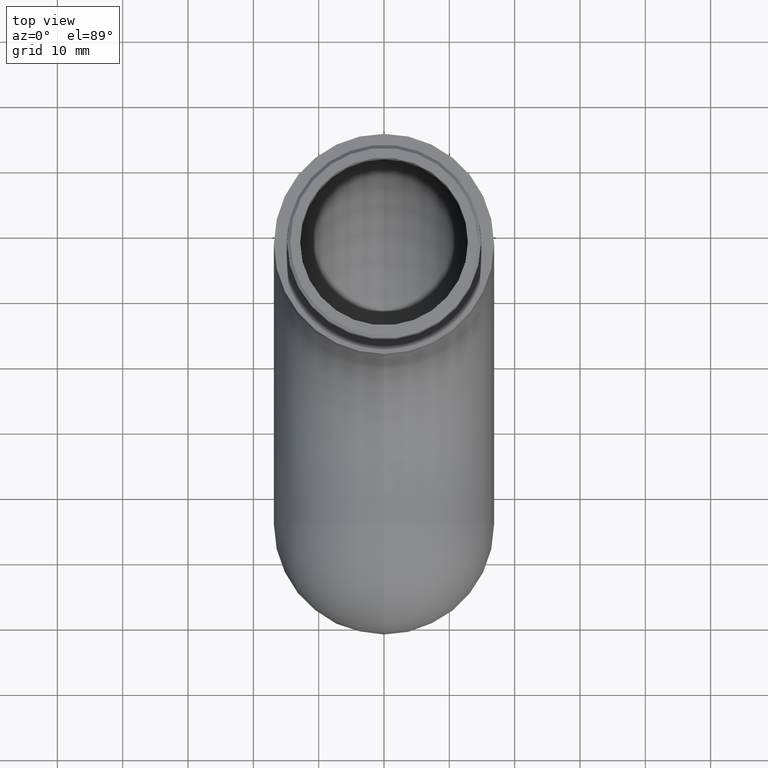
[diagram: clean part render]
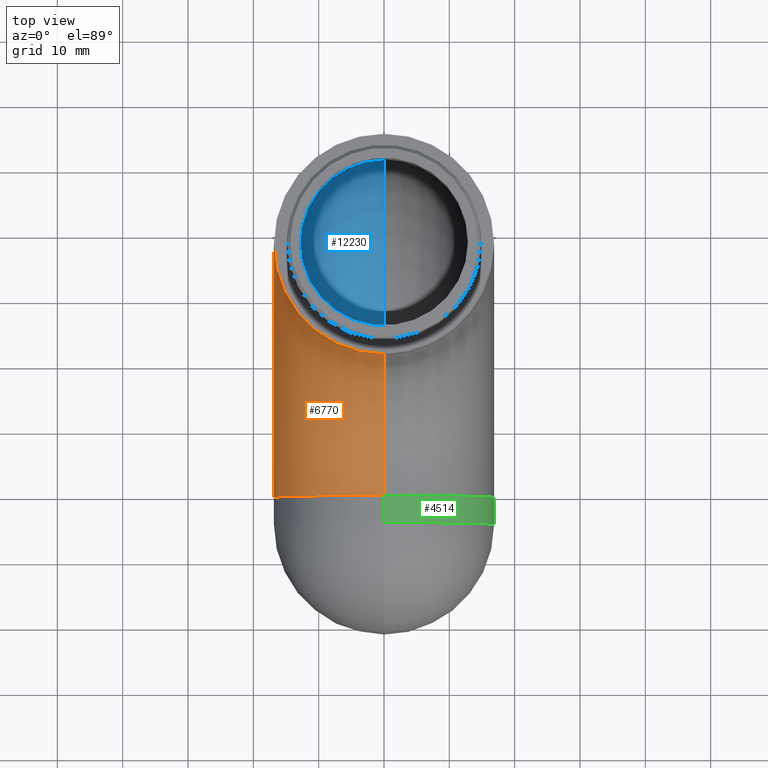
[diagram: same view with three faces highlighted in distinct colors, each labeled with its STEP entity id]
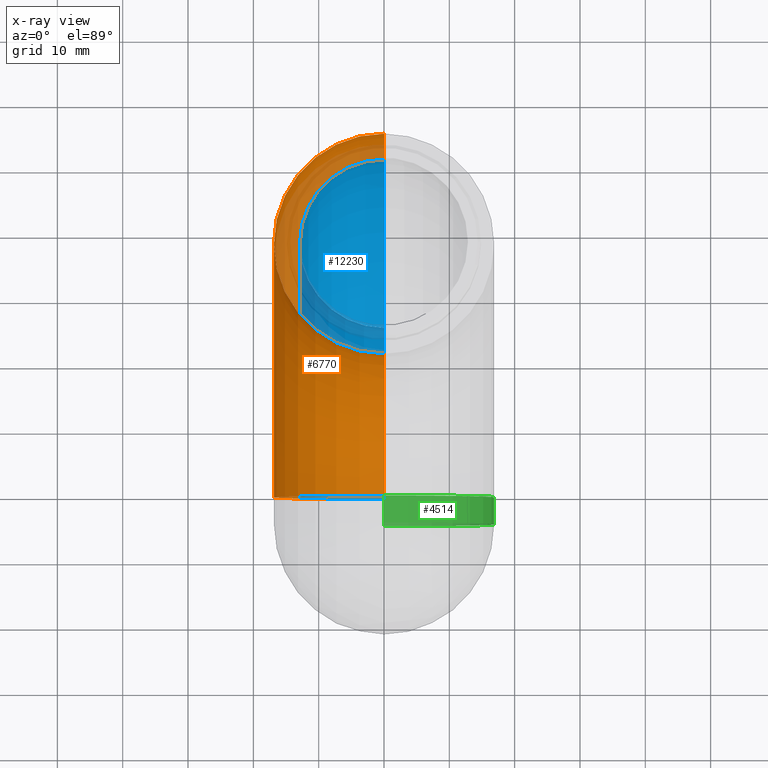
[diagram: x-ray of the same camera — body ghosted, the three highlighted faces saturated]
A machine part, top view with three faces highlighted in distinct colors.
The next image is the same camera in x-ray (body ghosted, the three faces saturated) — at least one of them is partly hidden behind the body in this view.
Their STEP definitions:

[orange] entity #6770 — the highlighted toroidal blend (fillet) surface has major radius 38.15 mm and minor (blend) radius 16.85 mm.
#585 = CIRCLE ( 'NONE', #5127, 21.29999999999999716 ) ;
#683 = ORIENTED_EDGE ( 'NONE', *, *, #2597, .F. ) ;
#1047 = VERTEX_POINT ( 'NONE', #5498 ) ;
#1107 = EDGE_LOOP ( 'NONE', ( #9685, #10260, #5250, #683 ) ) ;
#1224 = CARTESIAN_POINT ( 'NONE',  ( 0.000000000000000000, 38.14999999999999858, 6.134987908516368297E-15 ) ) ;
#1532 = VERTEX_POINT ( 'NONE', #9719 ) ;
#2095 = AXIS2_PLACEMENT_3D ( 'NONE', #10661, #4114, #5914 ) ;
#2125 = DIRECTION ( 'NONE',  ( -1.000000000000000000, -0.000000000000000000, -0.000000000000000000 ) ) ;
#2146 = EDGE_CURVE ( 'NONE', #1047, #7278, #4490, .T. ) ;
#2365 = DIRECTION ( 'NONE',  ( -1.000000000000000000, -0.000000000000000000, -0.000000000000000000 ) ) ;
#2597 = EDGE_CURVE ( 'NONE', #1532, #1047, #585, .T. ) ;
#3449 = DIRECTION ( 'NONE',  ( 0.000000000000000000, 0.000000000000000000, 1.000000000000000000 ) ) ;
#3623 = DIRECTION ( 'NONE',  ( 0.000000000000000000, 0.000000000000000000, 1.000000000000000000 ) ) ;
#4114 = DIRECTION ( 'NONE',  ( -0.000000000000000000, -1.000000000000000000, -0.000000000000000000 ) ) ;
#4211 = AXIS2_PLACEMENT_3D ( 'NONE', #7399, #9325, #3623 ) ;
#4490 = CIRCLE ( 'NONE', #2095, 16.85000000000001918 ) ;
#5127 = AXIS2_PLACEMENT_3D ( 'NONE', #7822, #2125, #6897 ) ;
#5147 = EDGE_CURVE ( 'NONE', #10488, #1532, #7057, .T. ) ;
#5250 = ORIENTED_EDGE ( 'NONE', *, *, #2146, .F. ) ;
#5498 = CARTESIAN_POINT ( 'NONE',  ( 2.063529856563292216E-15, 3.469446951953614189E-15, -21.29999999999995808 ) ) ;
#5796 = DIRECTION ( 'NONE',  ( 0.000000000000000000, -1.000000000000000000, -1.608122649676636601E-16 ) ) ;
#5914 = DIRECTION ( 'NONE',  ( 0.000000000000000000, 0.000000000000000000, -1.000000000000000000 ) ) ;
#5919 = DIRECTION ( 'NONE',  ( 0.000000000000000000, -1.608122649676636601E-16, 1.000000000000000000 ) ) ;
#6770 = ADVANCED_FACE ( 'NONE', ( #7934 ), #8245, .T. ) ;
#6897 = DIRECTION ( 'NONE',  ( 0.000000000000000000, 0.000000000000000000, 1.000000000000000000 ) ) ;
#7057 = CIRCLE ( 'NONE', #11835, 16.85000000000000142 ) ;
#7278 = VERTEX_POINT ( 'NONE', #8851 ) ;
#7399 = CARTESIAN_POINT ( 'NONE',  ( 0.000000000000000000, 0.000000000000000000, 0.000000000000000000 ) ) ;
#7479 = CARTESIAN_POINT ( 'NONE',  ( 0.000000000000000000, 54.99999999999999289, 8.844674573221500637E-15 ) ) ;
#7486 = EDGE_CURVE ( 'NONE', #10488, #7278, #8387, .T. ) ;
#7822 = CARTESIAN_POINT ( 'NONE',  ( 2.063529856563290244E-15, 0.000000000000000000, 0.000000000000000000 ) ) ;
#7934 = FACE_OUTER_BOUND ( 'NONE', #1107, .T. ) ;
#8245 = TOROIDAL_SURFACE ( 'NONE', #10959, 38.14999999999999858, 16.85000000000000142 ) ;
#8387 = CIRCLE ( 'NONE', #4211, 54.99999999999999289 ) ;
#8851 = CARTESIAN_POINT ( 'NONE',  ( 0.000000000000000000, 3.469446951953614189E-15, -54.99999999999999289 ) ) ;
#9325 = DIRECTION ( 'NONE',  ( -1.000000000000000000, -0.000000000000000000, -0.000000000000000000 ) ) ;
#9685 = ORIENTED_EDGE ( 'NONE', *, *, #5147, .F. ) ;
#9719 = CARTESIAN_POINT ( 'NONE',  ( 0.000000000000000000, 21.29999999999999716, 3.425301243811235562E-15 ) ) ;
#10260 = ORIENTED_EDGE ( 'NONE', *, *, #7486, .T. ) ;
#10488 = VERTEX_POINT ( 'NONE', #7479 ) ;
#10661 = CARTESIAN_POINT ( 'NONE',  ( 0.000000000000000000, 3.469446951953614189E-15, -38.14999999999997726 ) ) ;
#10941 = CARTESIAN_POINT ( 'NONE',  ( 0.000000000000000000, 0.000000000000000000, 0.000000000000000000 ) ) ;
#10959 = AXIS2_PLACEMENT_3D ( 'NONE', #10941, #2365, #3449 ) ;
#11835 = AXIS2_PLACEMENT_3D ( 'NONE', #1224, #5919, #5796 ) ;

[blue] entity #12230 — the highlighted toroidal blend (fillet) surface has major radius 38.15 mm and minor (blend) radius 12.85 mm.
#69 = CARTESIAN_POINT ( 'NONE',  ( 1.573671136904348863E-15, 25.29999999999999716, 4.068550303681890893E-15 ) ) ;
#339 = ORIENTED_EDGE ( 'NONE', *, *, #9287, .T. ) ;
#609 = DIRECTION ( 'NONE',  ( 0.000000000000000000, -1.000000000000000000, -1.608122649676636354E-16 ) ) ;
#1157 = AXIS2_PLACEMENT_3D ( 'NONE', #6712, #9601, #8507 ) ;
#1827 = VERTEX_POINT ( 'NONE', #5563 ) ;
#2325 = CARTESIAN_POINT ( 'NONE',  ( -12.84999999999999964, 38.14999999999999858, 6.134987908516368297E-15 ) ) ;
#2671 = AXIS2_PLACEMENT_3D ( 'NONE', #11657, #5935, #5038 ) ;
#3022 = FACE_OUTER_BOUND ( 'NONE', #9919, .T. ) ;
#3172 = CARTESIAN_POINT ( 'NONE',  ( 0.000000000000000000, 51.00000000000000000, 8.201425513350845701E-15 ) ) ;
#3278 = CARTESIAN_POINT ( 'NONE',  ( 0.000000000000000000, 38.14999999999999858, 6.134987908516368297E-15 ) ) ;
#3497 = VERTEX_POINT ( 'NONE', #10670 ) ;
#3690 = ORIENTED_EDGE ( 'NONE', *, *, #5895, .T. ) ;
#3785 = AXIS2_PLACEMENT_3D ( 'NONE', #11727, #6799, #4043 ) ;
#3788 = CIRCLE ( 'NONE', #3785, 12.84999999999999964 ) ;
#3856 = CARTESIAN_POINT ( 'NONE',  ( 0.000000000000000000, 0.000000000000000000, 0.000000000000000000 ) ) ;
#3958 = VERTEX_POINT ( 'NONE', #69 ) ;
#4043 = DIRECTION ( 'NONE',  ( 0.000000000000000000, 0.000000000000000000, 1.000000000000000000 ) ) ;
#4096 = TOROIDAL_SURFACE ( 'NONE', #9296, 38.14999999999999858, 12.84999999999999964 ) ;
#4121 = CARTESIAN_POINT ( 'NONE',  ( 0.000000000000000000, 38.14999999999999858, 6.134987908516368297E-15 ) ) ;
#4218 = CIRCLE ( 'NONE', #4384, 12.84999999999999964 ) ;
#4262 = DIRECTION ( 'NONE',  ( 0.000000000000000000, -1.608122649676636601E-16, 1.000000000000000000 ) ) ;
#4384 = AXIS2_PLACEMENT_3D ( 'NONE', #3278, #4262, #609 ) ;
#4837 = ORIENTED_EDGE ( 'NONE', *, *, #11904, .F. ) ;
#4858 = DIRECTION ( 'NONE',  ( -1.000000000000000000, -0.000000000000000000, -0.000000000000000000 ) ) ;
#5038 = DIRECTION ( 'NONE',  ( 0.000000000000000000, 0.000000000000000000, 1.000000000000000000 ) ) ;
#5274 = EDGE_CURVE ( 'NONE', #6604, #3958, #9897, .T. ) ;
#5563 = CARTESIAN_POINT ( 'NONE',  ( 1.573671136904348468E-15, 0.000000000000000000, -25.29999999999999716 ) ) ;
#5895 = EDGE_CURVE ( 'NONE', #3958, #1827, #6452, .T. ) ;
#5935 = DIRECTION ( 'NONE',  ( -1.000000000000000000, -0.000000000000000000, -0.000000000000000000 ) ) ;
#6005 = DIRECTION ( 'NONE',  ( 0.000000000000000000, -1.000000000000000000, -1.608122649676636354E-16 ) ) ;
#6017 = ORIENTED_EDGE ( 'NONE', *, *, #8766, .F. ) ;
#6452 = CIRCLE ( 'NONE', #2671, 25.29999999999999716 ) ;
#6604 = VERTEX_POINT ( 'NONE', #2325 ) ;
#6712 = CARTESIAN_POINT ( 'NONE',  ( 0.000000000000000000, 0.000000000000000000, 0.000000000000000000 ) ) ;
#6799 = DIRECTION ( 'NONE',  ( 0.000000000000000000, 1.000000000000000000, 0.000000000000000000 ) ) ;
#6861 = CIRCLE ( 'NONE', #1157, 51.00000000000000000 ) ;
#7682 = VERTEX_POINT ( 'NONE', #3172 ) ;
#7706 = DIRECTION ( 'NONE',  ( 0.000000000000000000, 0.000000000000000000, 1.000000000000000000 ) ) ;
#7951 = ORIENTED_EDGE ( 'NONE', *, *, #5274, .T. ) ;
#8507 = DIRECTION ( 'NONE',  ( 0.000000000000000000, 0.000000000000000000, 1.000000000000000000 ) ) ;
#8766 = EDGE_CURVE ( 'NONE', #7682, #3497, #6861, .T. ) ;
#8883 = DIRECTION ( 'NONE',  ( 0.000000000000000000, -1.608122649676636601E-16, 1.000000000000000000 ) ) ;
#9287 = EDGE_CURVE ( 'NONE', #7682, #6604, #4218, .T. ) ;
#9296 = AXIS2_PLACEMENT_3D ( 'NONE', #3856, #4858, #7706 ) ;
#9513 = AXIS2_PLACEMENT_3D ( 'NONE', #4121, #8883, #6005 ) ;
#9601 = DIRECTION ( 'NONE',  ( -1.000000000000000000, -0.000000000000000000, -0.000000000000000000 ) ) ;
#9897 = CIRCLE ( 'NONE', #9513, 12.84999999999999964 ) ;
#9919 = EDGE_LOOP ( 'NONE', ( #6017, #339, #7951, #3690, #4837 ) ) ;
#10670 = CARTESIAN_POINT ( 'NONE',  ( 0.000000000000000000, 0.000000000000000000, -51.00000000000000000 ) ) ;
#11657 = CARTESIAN_POINT ( 'NONE',  ( 1.573671136904348863E-15, 0.000000000000000000, 0.000000000000000000 ) ) ;
#11727 = CARTESIAN_POINT ( 'NONE',  ( 0.000000000000000000, 0.000000000000000000, -38.14999999999999858 ) ) ;
#11904 = EDGE_CURVE ( 'NONE', #3497, #1827, #3788, .T. ) ;
#12230 = ADVANCED_FACE ( 'NONE', ( #3022 ), #4096, .F. ) ;

[green] entity #4514 — the highlighted cylindrical surface (partial cylindrical patch) has radius 16.85 mm, axis along (-0, -1, -0).
#100 = CARTESIAN_POINT ( 'NONE',  ( 2.063529856563291822E-15, -20.99999999999999645, -21.29999999999996163 ) ) ;
#792 = CARTESIAN_POINT ( 'NONE',  ( 0.000000000000000000, -20.99999999999999645, -54.99999999999999289 ) ) ;
#807 = EDGE_CURVE ( 'NONE', #7278, #12162, #2239, .T. ) ;
#1047 = VERTEX_POINT ( 'NONE', #5498 ) ;
#1230 = AXIS2_PLACEMENT_3D ( 'NONE', #1914, #7490, #8445 ) ;
#1914 = CARTESIAN_POINT ( 'NONE',  ( 0.000000000000000000, 3.469446951953614189E-15, -38.14999999999997726 ) ) ;
#2239 = LINE ( 'NONE', #792, #2557 ) ;
#2557 = VECTOR ( 'NONE', #6444, 1000.000000000000000 ) ;
#2730 = EDGE_CURVE ( 'NONE', #1047, #8908, #10701, .T. ) ;
#3345 = EDGE_LOOP ( 'NONE', ( #6605, #9827, #5778, #4306 ) ) ;
#3715 = VECTOR ( 'NONE', #6921, 1000.000000000000000 ) ;
#3773 = CIRCLE ( 'NONE', #8629, 16.85000000000001208 ) ;
#4306 = ORIENTED_EDGE ( 'NONE', *, *, #807, .F. ) ;
#4514 = ADVANCED_FACE ( 'NONE', ( #5990 ), #6581, .T. ) ;
#4774 = CARTESIAN_POINT ( 'NONE',  ( 0.000000000000000000, -4.149999999999997691, -38.14999999999997726 ) ) ;
#4802 = EDGE_CURVE ( 'NONE', #12162, #8908, #3773, .T. ) ;
#5498 = CARTESIAN_POINT ( 'NONE',  ( 2.063529856563292216E-15, 3.469446951953614189E-15, -21.29999999999995808 ) ) ;
#5778 = ORIENTED_EDGE ( 'NONE', *, *, #4802, .F. ) ;
#5990 = FACE_OUTER_BOUND ( 'NONE', #3345, .T. ) ;
#6444 = DIRECTION ( 'NONE',  ( -0.000000000000000000, -1.000000000000000000, -0.000000000000000000 ) ) ;
#6581 = CYLINDRICAL_SURFACE ( 'NONE', #7188, 16.85000000000001918 ) ;
#6605 = ORIENTED_EDGE ( 'NONE', *, *, #8301, .T. ) ;
#6743 = DIRECTION ( 'NONE',  ( -0.000000000000000000, -1.000000000000000000, -0.000000000000000000 ) ) ;
#6790 = CARTESIAN_POINT ( 'NONE',  ( 0.000000000000000000, -4.149999999999997691, -21.29999999999997939 ) ) ;
#6820 = DIRECTION ( 'NONE',  ( 0.000000000000000000, 0.000000000000000000, -1.000000000000000000 ) ) ;
#6921 = DIRECTION ( 'NONE',  ( -0.000000000000000000, -1.000000000000000000, -0.000000000000000000 ) ) ;
#7188 = AXIS2_PLACEMENT_3D ( 'NONE', #8097, #11947, #11067 ) ;
#7278 = VERTEX_POINT ( 'NONE', #8851 ) ;
#7490 = DIRECTION ( 'NONE',  ( -0.000000000000000000, -1.000000000000000000, -0.000000000000000000 ) ) ;
#7925 = CIRCLE ( 'NONE', #1230, 16.85000000000001918 ) ;
#8097 = CARTESIAN_POINT ( 'NONE',  ( 0.000000000000000000, -20.99999999999999645, -38.14999999999997726 ) ) ;
#8301 = EDGE_CURVE ( 'NONE', #7278, #1047, #7925, .T. ) ;
#8445 = DIRECTION ( 'NONE',  ( 0.000000000000000000, 0.000000000000000000, -1.000000000000000000 ) ) ;
#8629 = AXIS2_PLACEMENT_3D ( 'NONE', #4774, #6743, #6820 ) ;
#8851 = CARTESIAN_POINT ( 'NONE',  ( 0.000000000000000000, 3.469446951953614189E-15, -54.99999999999999289 ) ) ;
#8908 = VERTEX_POINT ( 'NONE', #6790 ) ;
#9827 = ORIENTED_EDGE ( 'NONE', *, *, #2730, .T. ) ;
#10701 = LINE ( 'NONE', #100, #3715 ) ;
#11067 = DIRECTION ( 'NONE',  ( 0.000000000000000000, 0.000000000000000000, -1.000000000000000000 ) ) ;
#11233 = CARTESIAN_POINT ( 'NONE',  ( -2.063529856563289850E-15, -4.149999999999997691, -54.99999999999998579 ) ) ;
#11947 = DIRECTION ( 'NONE',  ( -0.000000000000000000, -1.000000000000000000, -0.000000000000000000 ) ) ;
#12162 = VERTEX_POINT ( 'NONE', #11233 ) ;